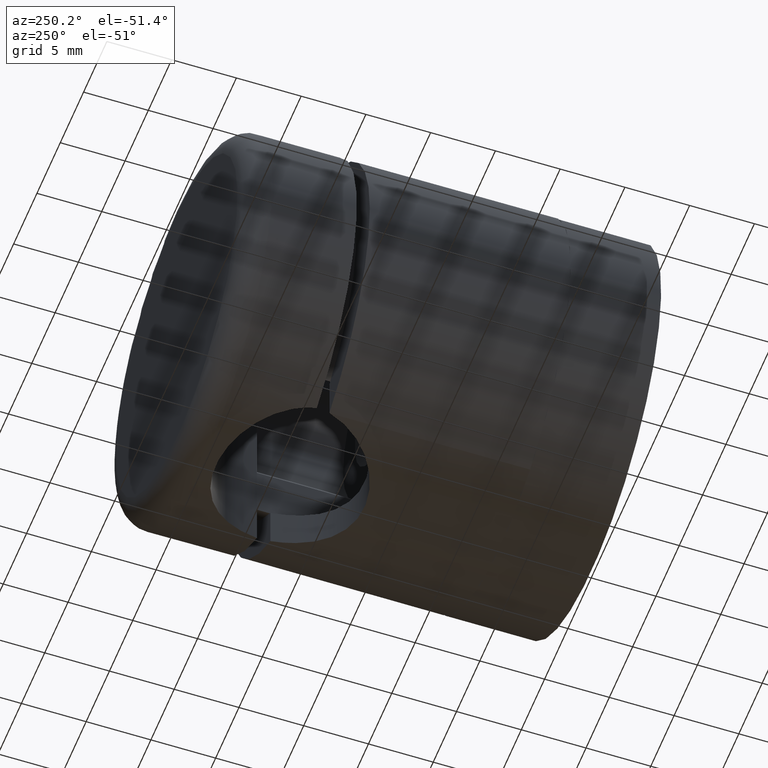
[diagram: clean part render]
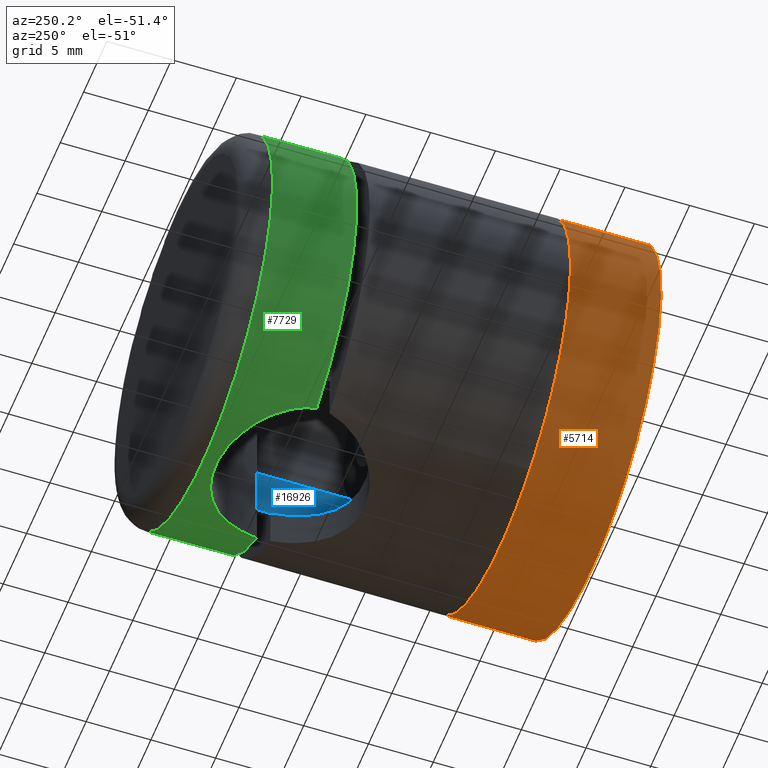
[diagram: same view with three faces highlighted in distinct colors, each labeled with its STEP entity id]
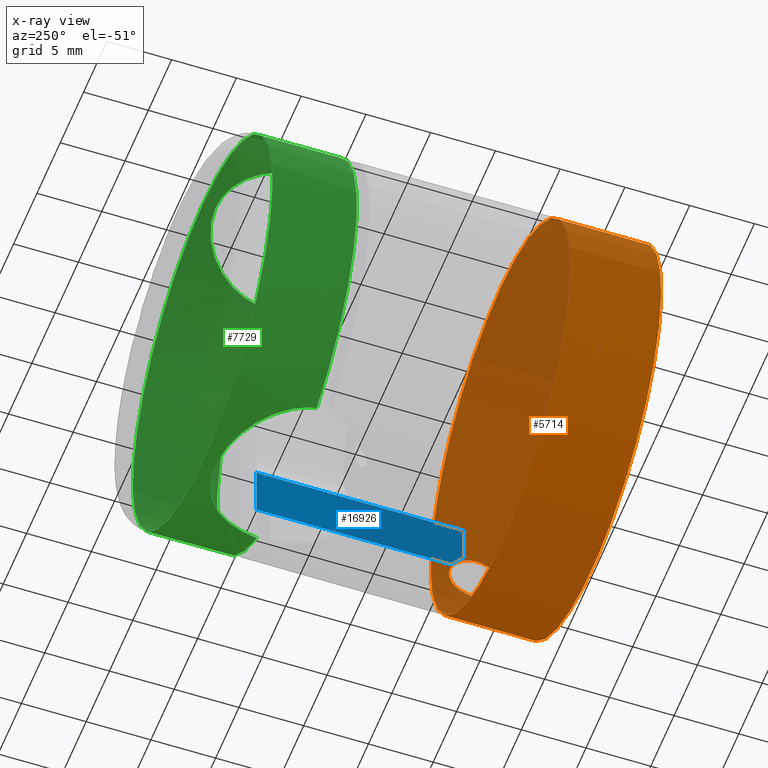
[diagram: x-ray of the same camera — body ghosted, the three highlighted faces saturated]
A machine part, auxiliary view with three faces highlighted in distinct colors.
The next image is the same camera in x-ray (body ghosted, the three faces saturated) — at least one of them is partly hidden behind the body in this view.
Their STEP definitions:

[orange] entity #5714 — the highlighted cylindrical surface (bore or boss wall) has radius 15 mm, axis along (-0, -1, -0).
#319 = AXIS2_PLACEMENT_3D ( 'NONE', #2960, #14883, #12243 ) ;
#649 = CARTESIAN_POINT ( 'NONE',  ( 14.90693426483694000, 2.219522831738395500, -1.670088595228581800 ) ) ;
#696 = CARTESIAN_POINT ( 'NONE',  ( 14.99803588044667500, 5.586093679874045900, 0.2774070980196613500 ) ) ;
#705 = FACE_BOUND ( 'NONE', #9248, .T. ) ;
#805 = CARTESIAN_POINT ( 'NONE',  ( 14.88093115687803800, 2.568215414941398500, -1.886985904423803500 ) ) ;
#861 = CARTESIAN_POINT ( 'NONE',  ( 14.98531365307220800, 1.506924353425382400, 0.6757279831503961700 ) ) ;
#1152 = CARTESIAN_POINT ( 'NONE',  ( 14.86045667689228900, 4.053851810579541100, -2.044026161332301900 ) ) ;
#1762 = DIRECTION ( 'NONE',  ( 0.0000000000000000000, 0.0000000000000000000, -1.000000000000000000 ) ) ;
#1800 = DIRECTION ( 'NONE',  ( 0.0000000000000000000, 0.0000000000000000000, 1.000000000000000000 ) ) ;
#1994 = CARTESIAN_POINT ( 'NONE',  ( 14.99197280321002700, 1.455484101051454100, -0.5520396915552559000 ) ) ;
#2050 = CARTESIAN_POINT ( 'NONE',  ( 15.00001681409874600, 5.600120100750130400, -0.1370021227111402600 ) ) ;
#2106 = CARTESIAN_POINT ( 'NONE',  ( 14.93610985704760500, 1.916693562626674600, 1.386472912938023500 ) ) ;
#2168 = CARTESIAN_POINT ( 'NONE',  ( 14.96483194288423100, 1.665063541254759400, -1.057261213926473000 ) ) ;
#2188 = VERTEX_POINT ( 'NONE', #11169 ) ;
#2283 = CARTESIAN_POINT ( 'NONE',  ( 14.93605355099475900, 5.082700583848319000, -1.386998091099954200 ) ) ;
#2527 = AXIS2_PLACEMENT_3D ( 'NONE', #12561, #16551, #1762 ) ;
#2823 = EDGE_CURVE ( 'NONE', #14829, #14829, #3621, .T. ) ;
#2960 = CARTESIAN_POINT ( 'NONE',  ( 0.0000000000000000000, 0.0000000000000000000, 0.0000000000000000000 ) ) ;
#3274 = CARTESIAN_POINT ( 'NONE',  ( 14.86162908175470100, 2.955900680671945200, -2.032906503153062000 ) ) ;
#3285 = CARTESIAN_POINT ( 'NONE',  ( 14.85227255338387700, 3.500000000000000000, -2.100000000000000100 ) ) ;
#3321 = CARTESIAN_POINT ( 'NONE',  ( 14.85225780194811700, 3.773457249765013200, 2.100104329695589000 ) ) ;
#3360 = ORIENTED_EDGE ( 'NONE', *, *, #4478, .F. ) ;
#3372 = CARTESIAN_POINT ( 'NONE',  ( 14.97167291203837000, 1.612219547436751100, 0.9301848220119645100 ) ) ;
#3431 = CARTESIAN_POINT ( 'NONE',  ( 14.94569797451354600, 1.829797144866673400, 1.280278799442170500 ) ) ;
#3484 = CARTESIAN_POINT ( 'NONE',  ( 14.88922878942384800, 2.445503899482420500, 1.821188695823271300 ) ) ;
#3533 = CARTESIAN_POINT ( 'NONE',  ( 14.96359486387764900, 5.323427643407144100, -1.050689724061230300 ) ) ;
#3621 = B_SPLINE_CURVE_WITH_KNOTS ( 'NONE', 3,
 ( #16655, #11212, #14041, #3274, #4594, #805, #7274, #649, #9955, #13877, #2168, #1994, #11437, #8732, #10061, #5939, #861, #3372, #7499, #3431, #2106, #4655, #16707, #3484, #15200, #16552, #8623, #4823, #12732, #3321, #12621, #15317, #10119, #16764, #16603, #13928, #6106, #15370, #8680, #7447, #12789, #696, #10008, #2050, #12670, #4713, #13983, #6050, #3533, #6445, #2283, #14198, #15538, #1152, #6278, #12846 ),
 .UNSPECIFIED., .T., .F.,
 ( 4, 2, 2, 2, 2, 2, 2, 2, 2, 2, 2, 2, 2, 2, 2, 2, 2, 2, 2, 2, 2, 2, 2, 2, 2, 2, 2, 4 ),
 ( 0.0000000000000000000, 0.0004108016764862697000, 0.0008216033529725393900, 0.001232405029458809300, 0.001643206705945079700, 0.002464810058917619100, 0.003286413411890159300, 0.003697215088376428800, 0.004108016764862699100, 0.004518818441348968600, 0.004929620117835237200, 0.005340421794321506700, 0.005751223470807776200, 0.006162025147294045700, 0.006572826823780315200, 0.007394430176752855000, 0.007805231853239124500, 0.008216033529725394800, 0.008626835206211665200, 0.009037636882697933800, 0.009448438559184204100, 0.009859240235670472700, 0.01027004191215674300, 0.01068084358864301200, 0.01109164526512928200, 0.01150244694161555200, 0.01232405029458809300, 0.01314565364756063400 ),
 .UNSPECIFIED. ) ;
#4478 = EDGE_CURVE ( 'NONE', #2188, #2188, #12775, .T. ) ;
#4594 = CARTESIAN_POINT ( 'NONE',  ( 14.86717778572359600, 2.822441346064820300, -1.992448891922825800 ) ) ;
#4655 = CARTESIAN_POINT ( 'NONE',  ( 14.91663226014233100, 2.112412310103575200, 1.582329553470630800 ) ) ;
#4713 = CARTESIAN_POINT ( 'NONE',  ( 14.99079738313514600, 5.533396339824402200, -0.5422729814787496900 ) ) ;
#4823 = CARTESIAN_POINT ( 'NONE',  ( 14.85424932411258700, 3.222772719180343200, 2.086148876091535000 ) ) ;
#5714 = ADVANCED_FACE ( 'NONE', ( #705, #6533, #11092 ), #7785, .T. ) ;
#5939 = CARTESIAN_POINT ( 'NONE',  ( 14.99071117512097100, 1.467236527023890300, 0.5447418884881959400 ) ) ;
#6050 = CARTESIAN_POINT ( 'NONE',  ( 14.97167886894465200, 5.387826316067955400, -0.9300719897764316800 ) ) ;
#6106 = CARTESIAN_POINT ( 'NONE',  ( 14.94557329376355300, 5.169098892562390200, 1.281753681174167200 ) ) ;
#6278 = CARTESIAN_POINT ( 'NONE',  ( 14.85227255338387500, 3.777837890732367800, -2.100000000000001400 ) ) ;
#6343 = EDGE_LOOP ( 'NONE', ( #3360 ) ) ;
#6445 = CARTESIAN_POINT ( 'NONE',  ( 14.94580421121919800, 5.171161464542976200, -1.279084292146443600 ) ) ;
#6533 = FACE_OUTER_BOUND ( 'NONE', #6343, .T. ) ;
#6999 = ORIENTED_EDGE ( 'NONE', *, *, #2823, .T. ) ;
#7274 = CARTESIAN_POINT ( 'NONE',  ( 14.88907228588378300, 2.447666337827163900, -1.822474021161822700 ) ) ;
#7412 = EDGE_CURVE ( 'NONE', #8658, #8658, #8188, .T. ) ;
#7447 = CARTESIAN_POINT ( 'NONE',  ( 14.98515666165309500, 5.491900806030890300, 0.6791852564062772500 ) ) ;
#7499 = CARTESIAN_POINT ( 'NONE',  ( 14.96343420080364000, 1.677898819028561500, 1.052919117453516000 ) ) ;
#7785 = CYLINDRICAL_SURFACE ( 'NONE', #2527, 15.00000000000000000 ) ;
#8188 = CIRCLE ( 'NONE', #319, 15.00000000000000000 ) ;
#8623 = CARTESIAN_POINT ( 'NONE',  ( 14.86171875453631600, 2.953359056355873100, 2.032253866321946500 ) ) ;
#8658 = VERTEX_POINT ( 'NONE', #16562 ) ;
#8680 = CARTESIAN_POINT ( 'NONE',  ( 14.97146737831621100, 5.386155907332919500, 0.9334759379969579400 ) ) ;
#8732 = CARTESIAN_POINT ( 'NONE',  ( 15.00001073210390600, 1.399923342103094300, 0.1359608270577573600 ) ) ;
#9248 = EDGE_LOOP ( 'NONE', ( #6999 ) ) ;
#9649 = DIRECTION ( 'NONE',  ( 0.0000000000000000000, 1.000000000000000000, 0.0000000000000000000 ) ) ;
#9816 = EDGE_LOOP ( 'NONE', ( #10462 ) ) ;
#9955 = CARTESIAN_POINT ( 'NONE',  ( 14.91671182809606200, 2.111636151345841000, -1.581505586933052800 ) ) ;
#10008 = CARTESIAN_POINT ( 'NONE',  ( 14.99998296295197200, 5.599878306754706400, 0.1406595749427567200 ) ) ;
#10061 = CARTESIAN_POINT ( 'NONE',  ( 14.99807931582386400, 1.413594247296859700, 0.2752854831385432300 ) ) ;
#10119 = CARTESIAN_POINT ( 'NONE',  ( 14.88901739134211300, 4.551621610429326600, 1.822939027015537200 ) ) ;
#10462 = ORIENTED_EDGE ( 'NONE', *, *, #7412, .T. ) ;
#11092 = FACE_OUTER_BOUND ( 'NONE', #9816, .T. ) ;
#11169 = CARTESIAN_POINT ( 'NONE',  ( 0.0000000000000000000, 7.000000000000000000, 15.00000000000000000 ) ) ;
#11212 = CARTESIAN_POINT ( 'NONE',  ( 14.85227255338387300, 3.361081054633816600, -2.100000000000000100 ) ) ;
#11437 = CARTESIAN_POINT ( 'NONE',  ( 14.99997839680747400, 1.400154308541816700, -0.2754584074142260600 ) ) ;
#12243 = DIRECTION ( 'NONE',  ( 0.0000000000000000000, 0.0000000000000000000, 1.000000000000000000 ) ) ;
#12561 = CARTESIAN_POINT ( 'NONE',  ( 0.0000000000000000000, 7.000000000000000000, 0.0000000000000000000 ) ) ;
#12621 = CARTESIAN_POINT ( 'NONE',  ( 14.86031228067962400, 4.050096312032168900, 2.045054317789488000 ) ) ;
#12670 = CARTESIAN_POINT ( 'NONE',  ( 14.99810773878437500, 5.586607350888872500, -0.2735515024079612200 ) ) ;
#12732 = CARTESIAN_POINT ( 'NONE',  ( 14.85227996142196900, 3.362071339320735300, 2.099947606567132300 ) ) ;
#12775 = CIRCLE ( 'NONE', #16531, 15.00000000000000000 ) ;
#12789 = CARTESIAN_POINT ( 'NONE',  ( 14.99066489657256400, 5.532422350639122600, 0.5458946124158773300 ) ) ;
#12846 = CARTESIAN_POINT ( 'NONE',  ( 14.85227255338387300, 3.500000000000000400, -2.100000000000000500 ) ) ;
#13877 = CARTESIAN_POINT ( 'NONE',  ( 14.94558149708381300, 1.821472091048234500, -1.291278610475290700 ) ) ;
#13928 = CARTESIAN_POINT ( 'NONE',  ( 14.93580785602185300, 5.080395452300114000, 1.389635566316079500 ) ) ;
#13983 = CARTESIAN_POINT ( 'NONE',  ( 14.98530654063773500, 5.493020863341648400, -0.6758623706719528700 ) ) ;
#14041 = CARTESIAN_POINT ( 'NONE',  ( 14.85422045007357500, 3.224518085856611800, -2.086351512769399000 ) ) ;
#14198 = CARTESIAN_POINT ( 'NONE',  ( 14.90719124405484500, 4.792800304203344900, -1.677345147775682000 ) ) ;
#14829 = VERTEX_POINT ( 'NONE', #3285 ) ;
#14883 = DIRECTION ( 'NONE',  ( 0.0000000000000000000, 1.000000000000000000, 0.0000000000000000000 ) ) ;
#15200 = CARTESIAN_POINT ( 'NONE',  ( 14.88092410392957800, 2.568334217100956400, 1.887040829819211600 ) ) ;
#15317 = CARTESIAN_POINT ( 'NONE',  ( 14.88078218404790900, 4.429305992327623900, 1.888148206955475400 ) ) ;
#15370 = CARTESIAN_POINT ( 'NONE',  ( 14.96336386670094900, 5.321534584131214300, 1.053942774144048800 ) ) ;
#15538 = CARTESIAN_POINT ( 'NONE',  ( 14.88783646941993400, 4.558892781389989300, -1.833995870718709800 ) ) ;
#16362 = CARTESIAN_POINT ( 'NONE',  ( 0.0000000000000000000, 7.000000000000000000, 0.0000000000000000000 ) ) ;
#16531 = AXIS2_PLACEMENT_3D ( 'NONE', #16362, #9649, #1800 ) ;
#16551 = DIRECTION ( 'NONE',  ( -0.0000000000000000000, -1.000000000000000000, -0.0000000000000000000 ) ) ;
#16552 = CARTESIAN_POINT ( 'NONE',  ( 14.86717688668173100, 2.822469540171070000, 1.992454943137651900 ) ) ;
#16562 = CARTESIAN_POINT ( 'NONE',  ( 0.0000000000000000000, 0.0000000000000000000, 15.00000000000000000 ) ) ;
#16603 = CARTESIAN_POINT ( 'NONE',  ( 14.91654957582623100, 4.886630708490439000, 1.583032555285201600 ) ) ;
#16655 = CARTESIAN_POINT ( 'NONE',  ( 14.85227255338387300, 3.500000000000000400, -2.100000000000000500 ) ) ;
#16707 = CARTESIAN_POINT ( 'NONE',  ( 14.90704439421815100, 2.218282147510757300, 1.669098450784618700 ) ) ;
#16764 = CARTESIAN_POINT ( 'NONE',  ( 14.90697168970222800, 4.780966076606919300, 1.669772624736853800 ) ) ;

[blue] entity #16926 — the highlighted planar face has unit normal (1, 0, 0).
#1100 = LINE ( 'NONE', #2358, #13787 ) ;
#1317 = EDGE_CURVE ( 'NONE', #14689, #3716, #3020, .T. ) ;
#1781 = VERTEX_POINT ( 'NONE', #5238 ) ;
#2358 = CARTESIAN_POINT ( 'NONE',  ( 6.500000000000000900, 26.00000000000000400, 10.14655113819469200 ) ) ;
#2636 = VECTOR ( 'NONE', #13677, 1000.000000000000000 ) ;
#3020 = B_SPLINE_CURVE_WITH_KNOTS ( 'NONE', 3,
 ( #12760, #8761, #4793, #14117 ),
 .UNSPECIFIED., .F., .F.,
 ( 4, 4 ),
 ( 0.0000000000000000000, 0.001570152645216921100 ),
 .UNSPECIFIED. ) ;
#3716 = VERTEX_POINT ( 'NONE', #15667 ) ;
#3793 = DIRECTION ( 'NONE',  ( 1.000000000000000000, 0.0000000000000000000, -1.156482317317871500E-016 ) ) ;
#4793 = CARTESIAN_POINT ( 'NONE',  ( 6.500000000000000900, 25.67087475942841100, 9.343008360349259100 ) ) ;
#4984 = CARTESIAN_POINT ( 'NONE',  ( 6.500000000000000900, 10.00000000000000200, 10.14655113819469200 ) ) ;
#5069 = DIRECTION ( 'NONE',  ( -1.156482317317871500E-016, 0.0000000000000000000, -1.000000000000000000 ) ) ;
#5235 = DIRECTION ( 'NONE',  ( -0.0000000000000000000, -1.000000000000000000, -0.0000000000000000000 ) ) ;
#5238 = CARTESIAN_POINT ( 'NONE',  ( 6.500000000000000900, 10.00000000000000200, 5.857687256929993100 ) ) ;
#5347 = EDGE_CURVE ( 'NONE', #14689, #14504, #1100, .T. ) ;
#5621 = VERTEX_POINT ( 'NONE', #14970 ) ;
#5956 = CARTESIAN_POINT ( 'NONE',  ( 6.500000000000000900, 25.00000000000000000, 10.14655113819469200 ) ) ;
#6485 = VECTOR ( 'NONE', #16006, 1000.000000000000000 ) ;
#7417 = AXIS2_PLACEMENT_3D ( 'NONE', #15932, #3793, #13215 ) ;
#7934 = ORIENTED_EDGE ( 'NONE', *, *, #16197, .T. ) ;
#8761 = CARTESIAN_POINT ( 'NONE',  ( 6.500000000000000900, 25.33712951246843300, 9.746177595508603600 ) ) ;
#8782 = LINE ( 'NONE', #14303, #6485 ) ;
#8844 = EDGE_CURVE ( 'NONE', #5621, #1781, #8782, .T. ) ;
#9180 = ORIENTED_EDGE ( 'NONE', *, *, #5347, .F. ) ;
#9242 = EDGE_CURVE ( 'NONE', #3716, #5621, #12305, .T. ) ;
#9395 = PLANE ( 'NONE',  #7417 ) ;
#10194 = CARTESIAN_POINT ( 'NONE',  ( 6.500000000000000000, 26.00000000000000400, -7.517135062566164700E-016 ) ) ;
#10706 = FACE_OUTER_BOUND ( 'NONE', #12310, .T. ) ;
#12305 = LINE ( 'NONE', #10194, #16837 ) ;
#12310 = EDGE_LOOP ( 'NONE', ( #16604, #14533, #7934, #9180, #14690 ) ) ;
#12348 = CARTESIAN_POINT ( 'NONE',  ( 6.499999999999996400, 10.00000000000000200, -29.99999999999999600 ) ) ;
#12760 = CARTESIAN_POINT ( 'NONE',  ( 6.500000000000000900, 25.00000000000000000, 10.14655113819469200 ) ) ;
#13215 = DIRECTION ( 'NONE',  ( -1.156482317317871500E-016, 0.0000000000000000000, -1.000000000000000000 ) ) ;
#13677 = DIRECTION ( 'NONE',  ( 1.156482317317871500E-016, -0.0000000000000000000, 1.000000000000000000 ) ) ;
#13787 = VECTOR ( 'NONE', #5235, 1000.000000000000000 ) ;
#14117 = CARTESIAN_POINT ( 'NONE',  ( 6.500000000000000900, 26.00000000000000400, 8.936022605163895300 ) ) ;
#14303 = CARTESIAN_POINT ( 'NONE',  ( 6.500000000000000900, -14.74873734152917100, 5.857687256929993100 ) ) ;
#14504 = VERTEX_POINT ( 'NONE', #4984 ) ;
#14533 = ORIENTED_EDGE ( 'NONE', *, *, #8844, .T. ) ;
#14689 = VERTEX_POINT ( 'NONE', #5956 ) ;
#14690 = ORIENTED_EDGE ( 'NONE', *, *, #1317, .T. ) ;
#14970 = CARTESIAN_POINT ( 'NONE',  ( 6.500000000000000900, 26.00000000000000400, 5.857687256929993100 ) ) ;
#15667 = CARTESIAN_POINT ( 'NONE',  ( 6.500000000000000900, 26.00000000000000400, 8.936022605163895300 ) ) ;
#15932 = CARTESIAN_POINT ( 'NONE',  ( 6.499999999999996400, -51.39218191268330600, -29.99999999999999600 ) ) ;
#16006 = DIRECTION ( 'NONE',  ( 0.0000000000000000000, -1.000000000000000000, 0.0000000000000000000 ) ) ;
#16197 = EDGE_CURVE ( 'NONE', #1781, #14504, #16524, .T. ) ;
#16524 = LINE ( 'NONE', #12348, #2636 ) ;
#16604 = ORIENTED_EDGE ( 'NONE', *, *, #9242, .T. ) ;
#16837 = VECTOR ( 'NONE', #5069, 1000.000000000000000 ) ;
#16926 = ADVANCED_FACE ( 'NONE', ( #10706 ), #9395, .F. ) ;

[green] entity #7729 — the highlighted cylindrical surface (bore or boss wall) has radius 15 mm, axis along (-0, 1, 0).
#97 = CARTESIAN_POINT ( 'NONE',  ( -6.362335356026252800, 9.612838695810705000, -13.58400303141017000 ) ) ;
#228 = ORIENTED_EDGE ( 'NONE', *, *, #7255, .F. ) ;
#406 = VERTEX_POINT ( 'NONE', #7781 ) ;
#450 = CARTESIAN_POINT ( 'NONE',  ( 6.422616289332565600, 10.00000000000000000, -13.55544171172595800 ) ) ;
#614 = CARTESIAN_POINT ( 'NONE',  ( 6.268600191724271300, 9.238995592914273300, 13.62803814488685800 ) ) ;
#624 = CIRCLE ( 'NONE', #5559, 15.00000000000000000 ) ;
#665 = CARTESIAN_POINT ( 'NONE',  ( 6.018616049374003300, 8.515498896019840600, 13.74027048104928600 ) ) ;
#716 = CARTESIAN_POINT ( 'NONE',  ( 4.794949442457275200, 6.595283377089410600, 14.21523748673799400 ) ) ;
#950 = VERTEX_POINT ( 'NONE', #9293 ) ;
#1303 = CARTESIAN_POINT ( 'NONE',  ( -6.422616289332565600, 10.00000000000000000, -13.55544171172595800 ) ) ;
#1413 = DIRECTION ( 'NONE',  ( -0.0000000000000000000, 1.000000000000000000, -0.0000000000000000000 ) ) ;
#1425 = CARTESIAN_POINT ( 'NONE',  ( -1.548046214029646000, 4.675241517022075600, -14.92476585482033600 ) ) ;
#1528 = AXIS2_PLACEMENT_3D ( 'NONE', #8291, #1533, #8399 ) ;
#1533 = DIRECTION ( 'NONE',  ( -0.0000000000000000000, -1.000000000000000000, -0.0000000000000000000 ) ) ;
#1543 = CARTESIAN_POINT ( 'NONE',  ( 6.268175377190915200, 9.236370881951169000, -13.62825674477519800 ) ) ;
#1982 = ORIENTED_EDGE ( 'NONE', *, *, #3379, .T. ) ;
#2011 = CARTESIAN_POINT ( 'NONE',  ( -6.362337558146444700, 9.612852839183720000, 13.58400198803782800 ) ) ;
#2067 = CARTESIAN_POINT ( 'NONE',  ( -2.630203216957173000, 5.043526561589984200, 14.77208900755862200 ) ) ;
#2578 = B_SPLINE_CURVE_WITH_KNOTS ( 'NONE', 3,
 ( #1303, #97, #11940, #12000, #12113, #3975, #13276, #4155, #5499, #8006, #6794, #4036, #6729, #10720, #2782, #9397, #1425, #14759, #12054, #4096, #13394, #16061, #8124, #10782, #6850, #7127, #4210, #11006, #14816, #4440, #5667, #14934, #12180, #1543, #8298, #9630 ),
 .UNSPECIFIED., .F., .F.,
 ( 4, 2, 2, 2, 2, 2, 2, 2, 2, 2, 2, 2, 2, 2, 2, 2, 2, 4 ),
 ( 0.0000000000000000000, 0.001160339608434550000, 0.002320679216869099900, 0.003481018825303649900, 0.004641358433738199800, 0.005801698042172748900, 0.006381867846390024300, 0.006962037650607299700, 0.008122377259041852300, 0.009282716867476403100, 0.01044305647591095600, 0.01160339608434550600, 0.01276373569278005600, 0.01392407530121460600, 0.01508441490964915900, 0.01624475451808371100, 0.01740509412651826800, 0.01856543373495282700 ),
 .UNSPECIFIED. ) ;
#2601 = DIRECTION ( 'NONE',  ( 0.0000000000000000000, 0.0000000000000000000, 1.000000000000000000 ) ) ;
#2782 = CARTESIAN_POINT ( 'NONE',  ( -2.458690643464422500, 4.979877777448733100, -14.79824613081686200 ) ) ;
#2998 = CARTESIAN_POINT ( 'NONE',  ( 3.950822678620542000, 5.824536906839102600, 14.47346546143835000 ) ) ;
#3290 = CARTESIAN_POINT ( 'NONE',  ( 2.637460770363953000, 5.056020661312689200, 14.76736438160729200 ) ) ;
#3377 = CYLINDRICAL_SURFACE ( 'NONE', #1528, 15.00000000000000000 ) ;
#3379 = EDGE_CURVE ( 'NONE', #406, #10436, #2578, .T. ) ;
#3389 = CARTESIAN_POINT ( 'NONE',  ( 1.918015273664549500, 4.777513163625822100, 14.88133765237430200 ) ) ;
#3975 = CARTESIAN_POINT ( 'NONE',  ( -5.486938340650330500, 7.494218994460954500, -13.96188866820116700 ) ) ;
#4036 = CARTESIAN_POINT ( 'NONE',  ( -3.153176283947181500, 5.312855872061488700, -14.66579610677816700 ) ) ;
#4096 = CARTESIAN_POINT ( 'NONE',  ( 0.3827388003578785500, 4.499649296997374900, -15.00015197124991500 ) ) ;
#4155 = CARTESIAN_POINT ( 'NONE',  ( -4.794949442457275200, 6.595283377089410600, -14.21523748673799400 ) ) ;
#4210 = CARTESIAN_POINT ( 'NONE',  ( 3.947622483528450600, 5.822221790141216300, -14.47431450835092200 ) ) ;
#4215 = FACE_OUTER_BOUND ( 'NONE', #12032, .T. ) ;
#4320 = CARTESIAN_POINT ( 'NONE',  ( -3.947622483528450600, 5.822221790141216300, 14.47431450835092200 ) ) ;
#4440 = CARTESIAN_POINT ( 'NONE',  ( 5.271658729829376000, 7.178275941768724500, -14.04548322157315200 ) ) ;
#4671 = VERTEX_POINT ( 'NONE', #7070 ) ;
#4700 = ORIENTED_EDGE ( 'NONE', *, *, #6509, .T. ) ;
#5489 = CIRCLE ( 'NONE', #14296, 15.00000000000000000 ) ;
#5499 = CARTESIAN_POINT ( 'NONE',  ( -4.527012842098861800, 6.320195218383042300, -14.30371829381518500 ) ) ;
#5550 = CARTESIAN_POINT ( 'NONE',  ( 5.273488689556581100, 7.181180061198875600, 14.04474399913367200 ) ) ;
#5559 = AXIS2_PLACEMENT_3D ( 'NONE', #14345, #9151, #2601 ) ;
#5603 = CARTESIAN_POINT ( 'NONE',  ( 2.984750547377585500, 5.222599731377471200, 14.70110588575912800 ) ) ;
#5657 = CARTESIAN_POINT ( 'NONE',  ( -4.521627670629979600, 6.315131413674330400, 14.30539712721428600 ) ) ;
#5667 = CARTESIAN_POINT ( 'NONE',  ( 5.484849319888041000, 7.491397833565475400, -13.96268398159988400 ) ) ;
#6013 = CARTESIAN_POINT ( 'NONE',  ( 5.486938340650330500, 7.494218994460954500, 13.96188866820116700 ) ) ;
#6305 = CIRCLE ( 'NONE', #13663, 15.00000000000000000 ) ;
#6509 = EDGE_CURVE ( 'NONE', #4671, #4671, #5489, .T. ) ;
#6729 = CARTESIAN_POINT ( 'NONE',  ( -2.984750547377585500, 5.222599731377471200, -14.70110588575912800 ) ) ;
#6786 = CARTESIAN_POINT ( 'NONE',  ( 6.422616289332565600, 10.00000000000000000, 13.55544171172595800 ) ) ;
#6794 = CARTESIAN_POINT ( 'NONE',  ( -3.643586982179250800, 5.603817095236333800, -14.55460952400442100 ) ) ;
#6850 = CARTESIAN_POINT ( 'NONE',  ( 2.975436480609576800, 5.208240311569190900, -14.70584423967362900 ) ) ;
#6899 = CARTESIAN_POINT ( 'NONE',  ( -0.7679343891342255100, 4.533877340496638400, 14.98522259096836600 ) ) ;
#6952 = CARTESIAN_POINT ( 'NONE',  ( -1.910354660685002800, 4.775203629404816600, 14.88230921867050900 ) ) ;
#7006 = CARTESIAN_POINT ( 'NONE',  ( -5.484849319888041000, 7.491397833565475400, 13.96268398159988400 ) ) ;
#7070 = CARTESIAN_POINT ( 'NONE',  ( 0.0000000000000000000, 3.499999999999999600, -15.00000000000000000 ) ) ;
#7127 = CARTESIAN_POINT ( 'NONE',  ( 3.637209727890963900, 5.599221543702261000, -14.55629700325668600 ) ) ;
#7255 = EDGE_CURVE ( 'NONE', #406, #950, #6305, .T. ) ;
#7729 = ADVANCED_FACE ( 'NONE', ( #4215, #8600 ), #3377, .T. ) ;
#7781 = CARTESIAN_POINT ( 'NONE',  ( -6.422616289332565600, 10.00000000000000000, -13.55544171172595800 ) ) ;
#7930 = DIRECTION ( 'NONE',  ( 0.0000000000000000000, 0.0000000000000000000, -1.000000000000000000 ) ) ;
#8006 = CARTESIAN_POINT ( 'NONE',  ( -3.950822678620542000, 5.824536906839102600, -14.47346546143835000 ) ) ;
#8124 = CARTESIAN_POINT ( 'NONE',  ( 1.910354660685002800, 4.775203629404816600, -14.88230921867050900 ) ) ;
#8291 = CARTESIAN_POINT ( 'NONE',  ( 0.0000000000000000000, 10.00000000000000000, 0.0000000000000000000 ) ) ;
#8292 = CARTESIAN_POINT ( 'NONE',  ( 4.527012842098861800, 6.320195218383042300, 14.30371829381518500 ) ) ;
#8298 = CARTESIAN_POINT ( 'NONE',  ( 6.362337558146444700, 9.612852839183720000, -13.58400198803782800 ) ) ;
#8391 = VERTEX_POINT ( 'NONE', #6786 ) ;
#8399 = DIRECTION ( 'NONE',  ( 0.0000000000000000000, 0.0000000000000000000, -1.000000000000000000 ) ) ;
#8600 = FACE_OUTER_BOUND ( 'NONE', #14545, .T. ) ;
#8642 = CARTESIAN_POINT ( 'NONE',  ( -0.3827388003578785500, 4.499649296997374900, 15.00015197124991500 ) ) ;
#9151 = DIRECTION ( 'NONE',  ( 0.0000000000000000000, 1.000000000000000000, 0.0000000000000000000 ) ) ;
#9293 = CARTESIAN_POINT ( 'NONE',  ( -6.422616289332565600, 10.00000000000000000, 13.55544171172595800 ) ) ;
#9385 = CARTESIAN_POINT ( 'NONE',  ( 0.0000000000000000000, 3.499999999999999600, 0.0000000000000000000 ) ) ;
#9397 = CARTESIAN_POINT ( 'NONE',  ( -1.918015273664549500, 4.777513163625822100, -14.88133765237430200 ) ) ;
#9567 = CARTESIAN_POINT ( 'NONE',  ( 5.861027830435243200, 8.163568159859908100, 13.80902532071711500 ) ) ;
#9630 = CARTESIAN_POINT ( 'NONE',  ( 6.422616289332565600, 10.00000000000000000, -13.55544171172595800 ) ) ;
#9918 = CARTESIAN_POINT ( 'NONE',  ( -6.268175377190915200, 9.236370881951169000, 13.62825674477519800 ) ) ;
#9972 = CARTESIAN_POINT ( 'NONE',  ( -5.855705260370522000, 8.153146100015964800, 13.81125743499017300 ) ) ;
#10361 = B_SPLINE_CURVE_WITH_KNOTS ( 'NONE', 3,
 ( #12583, #13557, #614, #665, #9567, #6013, #5550, #716, #8292, #2998, #11291, #11231, #5603, #3290, #14808, #3389, #14865, #15216, #16568, #8642, #6899, #10881, #6952, #2067, #12281, #11348, #4320, #5657, #12639, #14924, #7006, #9972, #16275, #9918, #2011, #15279 ),
 .UNSPECIFIED., .F., .F.,
 ( 4, 2, 2, 2, 2, 2, 2, 2, 2, 2, 2, 2, 2, 2, 2, 2, 2, 4 ),
 ( 0.0000000000000000000, 0.001160339608434550000, 0.002320679216869099900, 0.003481018825303649900, 0.004641358433738199800, 0.005801698042172748900, 0.006381867846390024300, 0.006962037650607299700, 0.008122377259041852300, 0.009282716867476403100, 0.01044305647591095600, 0.01160339608434550600, 0.01276373569278005600, 0.01392407530121460600, 0.01508441490964915900, 0.01624475451808371100, 0.01740509412651826800, 0.01856543373495282700 ),
 .UNSPECIFIED. ) ;
#10411 = ORIENTED_EDGE ( 'NONE', *, *, #10940, .F. ) ;
#10436 = VERTEX_POINT ( 'NONE', #450 ) ;
#10720 = CARTESIAN_POINT ( 'NONE',  ( -2.637460770363953000, 5.056020661312689200, -14.76736438160729200 ) ) ;
#10782 = CARTESIAN_POINT ( 'NONE',  ( 2.630203216957173000, 5.043526561589984200, -14.77208900755862200 ) ) ;
#10881 = CARTESIAN_POINT ( 'NONE',  ( -1.531499593099914900, 4.671100058454663400, 14.92652432159671800 ) ) ;
#10940 = EDGE_CURVE ( 'NONE', #8391, #10436, #624, .T. ) ;
#11006 = CARTESIAN_POINT ( 'NONE',  ( 4.521627670629979600, 6.315131413674330400, -14.30539712721428600 ) ) ;
#11231 = CARTESIAN_POINT ( 'NONE',  ( 3.153176283947181500, 5.312855872061488700, 14.66579610677816700 ) ) ;
#11291 = CARTESIAN_POINT ( 'NONE',  ( 3.643586982179250800, 5.603817095236333800, 14.55460952400442100 ) ) ;
#11348 = CARTESIAN_POINT ( 'NONE',  ( -3.637209727890963900, 5.599221543702261000, 14.55629700325668600 ) ) ;
#11887 = DIRECTION ( 'NONE',  ( 0.0000000000000000000, 0.0000000000000000000, 1.000000000000000000 ) ) ;
#11940 = CARTESIAN_POINT ( 'NONE',  ( -6.268600191724271300, 9.238995592914273300, -13.62803814488685800 ) ) ;
#11950 = CARTESIAN_POINT ( 'NONE',  ( 0.0000000000000000000, 10.00000000000000000, 0.0000000000000000000 ) ) ;
#12000 = CARTESIAN_POINT ( 'NONE',  ( -6.018616049374003300, 8.515498896019840600, -13.74027048104928600 ) ) ;
#12032 = EDGE_LOOP ( 'NONE', ( #4700 ) ) ;
#12054 = CARTESIAN_POINT ( 'NONE',  ( -0.3945594086751044700, 4.500356077110681400, -14.99984569997031700 ) ) ;
#12113 = CARTESIAN_POINT ( 'NONE',  ( -5.861027830435243200, 8.163568159859908100, -13.80902532071711500 ) ) ;
#12180 = CARTESIAN_POINT ( 'NONE',  ( 6.013994173351926900, 8.503545652702378300, -13.74231707331853900 ) ) ;
#12281 = CARTESIAN_POINT ( 'NONE',  ( -2.975436480609576800, 5.208240311569190900, 14.70584423967362900 ) ) ;
#12583 = CARTESIAN_POINT ( 'NONE',  ( 6.422616289332565600, 10.00000000000000000, 13.55544171172595800 ) ) ;
#12639 = CARTESIAN_POINT ( 'NONE',  ( -4.787651154022804600, 6.587024023582937800, 14.21774880628657600 ) ) ;
#13246 = ORIENTED_EDGE ( 'NONE', *, *, #14705, .T. ) ;
#13276 = CARTESIAN_POINT ( 'NONE',  ( -5.273488689556581100, 7.181180061198875600, -14.04474399913367200 ) ) ;
#13394 = CARTESIAN_POINT ( 'NONE',  ( 0.7679343891342255100, 4.533877340496638400, -14.98522259096836600 ) ) ;
#13557 = CARTESIAN_POINT ( 'NONE',  ( 6.362335356026252800, 9.612838695810705000, 13.58400303141017000 ) ) ;
#13663 = AXIS2_PLACEMENT_3D ( 'NONE', #11950, #14476, #11887 ) ;
#14296 = AXIS2_PLACEMENT_3D ( 'NONE', #9385, #1413, #7930 ) ;
#14345 = CARTESIAN_POINT ( 'NONE',  ( 0.0000000000000000000, 10.00000000000000000, 0.0000000000000000000 ) ) ;
#14476 = DIRECTION ( 'NONE',  ( 0.0000000000000000000, 1.000000000000000000, 0.0000000000000000000 ) ) ;
#14545 = EDGE_LOOP ( 'NONE', ( #10411, #13246, #228, #1982 ) ) ;
#14705 = EDGE_CURVE ( 'NONE', #8391, #950, #10361, .T. ) ;
#14759 = CARTESIAN_POINT ( 'NONE',  ( -0.7885654122963266000, 4.536472979920121800, -14.98409982256232600 ) ) ;
#14808 = CARTESIAN_POINT ( 'NONE',  ( 2.458690643464422500, 4.979877777448733100, 14.79824613081686200 ) ) ;
#14816 = CARTESIAN_POINT ( 'NONE',  ( 4.787651154022804600, 6.587024023582937800, -14.21774880628657600 ) ) ;
#14865 = CARTESIAN_POINT ( 'NONE',  ( 1.548046214029646000, 4.675241517022075600, 14.92476585482033600 ) ) ;
#14924 = CARTESIAN_POINT ( 'NONE',  ( -5.271658729829376000, 7.178275941768724500, 14.04548322157315200 ) ) ;
#14934 = CARTESIAN_POINT ( 'NONE',  ( 5.855705260370522000, 8.153146100015964800, -13.81125743499017300 ) ) ;
#15216 = CARTESIAN_POINT ( 'NONE',  ( 0.7885654122963266000, 4.536472979920121800, 14.98409982256232600 ) ) ;
#15279 = CARTESIAN_POINT ( 'NONE',  ( -6.422616289332565600, 10.00000000000000000, 13.55544171172595800 ) ) ;
#16061 = CARTESIAN_POINT ( 'NONE',  ( 1.531499593099914900, 4.671100058454663400, -14.92652432159671800 ) ) ;
#16275 = CARTESIAN_POINT ( 'NONE',  ( -6.013994173351926900, 8.503545652702378300, 13.74231707331853900 ) ) ;
#16568 = CARTESIAN_POINT ( 'NONE',  ( 0.3945594086751044700, 4.500356077110681400, 14.99984569997031700 ) ) ;